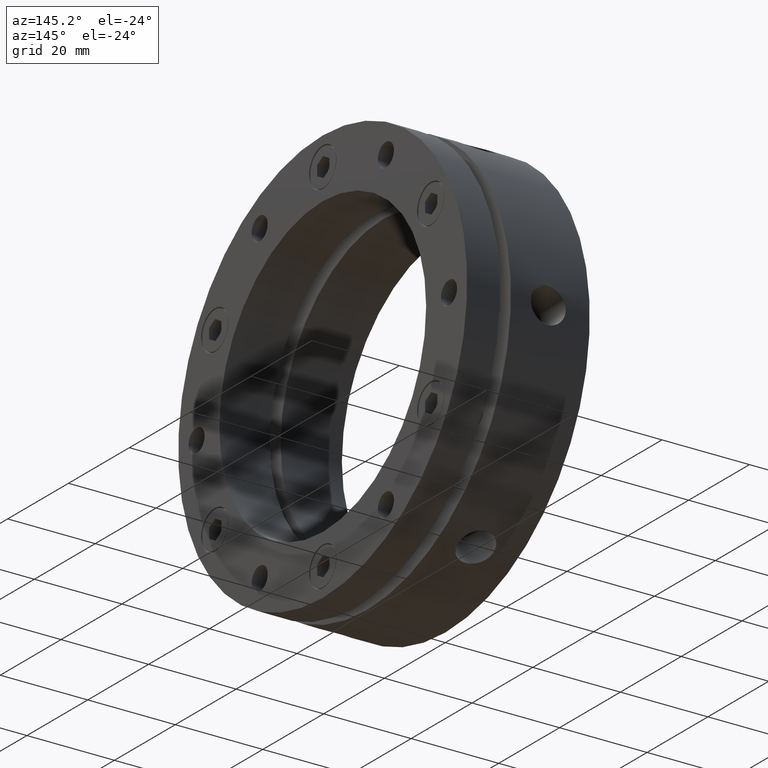
[diagram: clean part render]
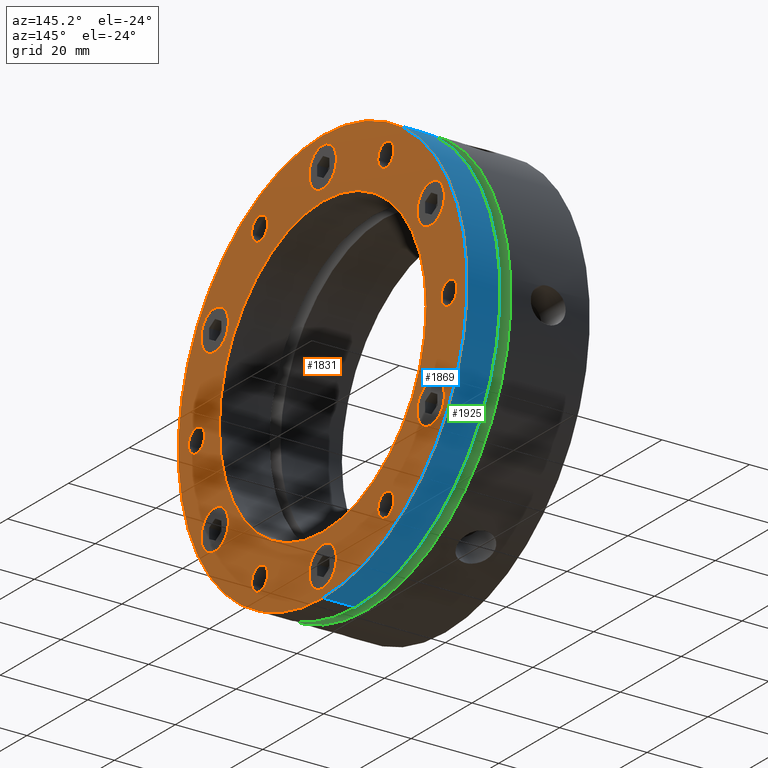
[diagram: same view with three faces highlighted in distinct colors, each labeled with its STEP entity id]
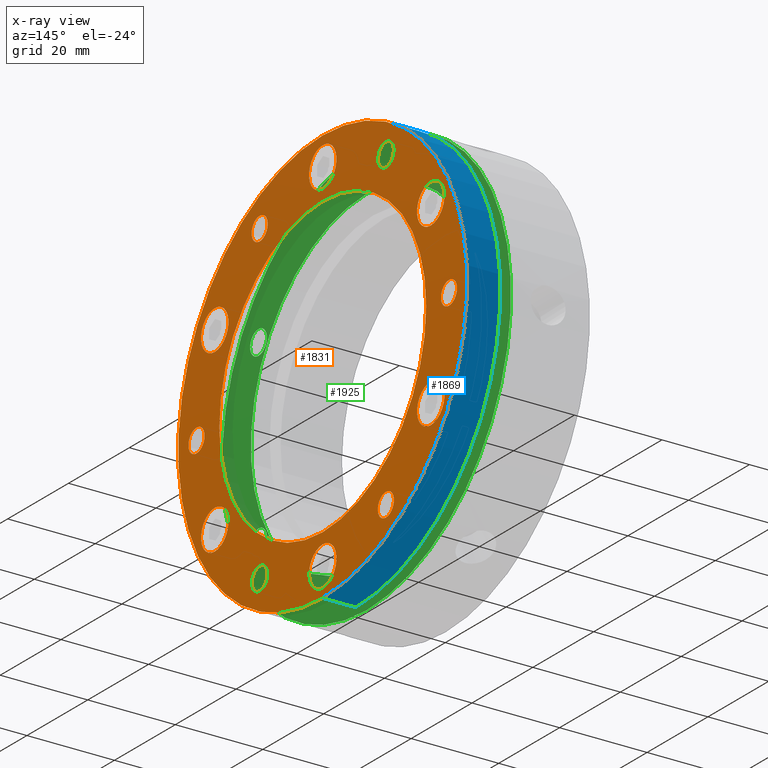
[diagram: x-ray of the same camera — body ghosted, the three highlighted faces saturated]
A machine part, auxiliary view with three faces highlighted in distinct colors.
The next image is the same camera in x-ray (body ghosted, the three faces saturated) — at least one of them is partly hidden behind the body in this view.
Their STEP definitions:

[orange] entity #1831 — the highlighted planar face has unit normal (1, 0, 0).
#133 = EDGE_CURVE ( 'NONE', #1423, #1424, #323, .T. ) ;
#204 = EDGE_LOOP ( 'NONE', ( #1578, #1574 ) ) ;
#205 = EDGE_LOOP ( 'NONE', ( #716, #711 ) ) ;
#207 = EDGE_LOOP ( 'NONE', ( #1571, #1570 ) ) ;
#208 = EDGE_LOOP ( 'NONE', ( #1560, #635 ) ) ;
#209 = EDGE_LOOP ( 'NONE', ( #1562, #1561 ) ) ;
#210 = EDGE_LOOP ( 'NONE', ( #1568, #1566 ) ) ;
#211 = EDGE_LOOP ( 'NONE', ( #760, #699 ) ) ;
#212 = EDGE_LOOP ( 'NONE', ( #712, #698 ) ) ;
#213 = EDGE_LOOP ( 'NONE', ( #663, #730 ) ) ;
#214 = EDGE_LOOP ( 'NONE', ( #727, #722 ) ) ;
#215 = EDGE_LOOP ( 'NONE', ( #726, #729 ) ) ;
#216 = EDGE_LOOP ( 'NONE', ( #723, #720 ) ) ;
#217 = EDGE_LOOP ( 'NONE', ( #725, #721 ) ) ;
#218 = EDGE_LOOP ( 'NONE', ( #724, #728 ) ) ;
#323 = CIRCLE ( 'NONE', #3029, 4.500000000000000900 ) ;
#353 = CIRCLE ( 'NONE', #3039, 4.500000000000000900 ) ;
#359 = CIRCLE ( 'NONE', #3044, 4.499999999999997300 ) ;
#362 = CIRCLE ( 'NONE', #3046, 47.50000000000000000 ) ;
#364 = CIRCLE ( 'NONE', #3049, 4.500000000000003600 ) ;
#365 = CIRCLE ( 'NONE', #3050, 4.500000000000000900 ) ;
#366 = CIRCLE ( 'NONE', #3053, 4.500000000000000900 ) ;
#368 = CIRCLE ( 'NONE', #3052, 4.500000000000000900 ) ;
#369 = CIRCLE ( 'NONE', #3055, 2.649999999999999500 ) ;
#447 = EDGE_CURVE ( 'NONE', #1412, #1411, #353, .T. ) ;
#452 = EDGE_CURVE ( 'NONE', #1404, #1403, #359, .T. ) ;
#454 = EDGE_CURVE ( 'NONE', #1397, #1396, #362, .T. ) ;
#457 = EDGE_CURVE ( 'NONE', #1416, #1415, #364, .T. ) ;
#458 = EDGE_CURVE ( 'NONE', #1424, #1423, #365, .T. ) ;
#460 = EDGE_CURVE ( 'NONE', #1420, #1419, #368, .T. ) ;
#461 = EDGE_CURVE ( 'NONE', #1419, #1420, #366, .T. ) ;
#463 = EDGE_CURVE ( 'NONE', #1428, #1427, #369, .T. ) ;
#469 = AXIS2_PLACEMENT_3D ( 'NONE', #2591, #2592, #2593 ) ;
#475 = AXIS2_PLACEMENT_3D ( 'NONE', #3288, #3289, #3290 ) ;
#508 = AXIS2_PLACEMENT_3D ( 'NONE', #3393, #3389, #3395 ) ;
#635 = ORIENTED_EDGE ( 'NONE', *, *, #457, .T. ) ;
#663 = ORIENTED_EDGE ( 'NONE', *, *, #4709, .T. ) ;
#698 = ORIENTED_EDGE ( 'NONE', *, *, #463, .T. ) ;
#699 = ORIENTED_EDGE ( 'NONE', *, *, #458, .T. ) ;
#711 = ORIENTED_EDGE ( 'NONE', *, *, #460, .T. ) ;
#712 = ORIENTED_EDGE ( 'NONE', *, *, #3121, .T. ) ;
#716 = ORIENTED_EDGE ( 'NONE', *, *, #461, .T. ) ;
#720 = ORIENTED_EDGE ( 'NONE', *, *, #2991, .T. ) ;
#721 = ORIENTED_EDGE ( 'NONE', *, *, #4732, .T. ) ;
#722 = ORIENTED_EDGE ( 'NONE', *, *, #2992, .T. ) ;
#723 = ORIENTED_EDGE ( 'NONE', *, *, #2985, .T. ) ;
#724 = ORIENTED_EDGE ( 'NONE', *, *, #454, .F. ) ;
#725 = ORIENTED_EDGE ( 'NONE', *, *, #2980, .T. ) ;
#726 = ORIENTED_EDGE ( 'NONE', *, *, #2994, .T. ) ;
#727 = ORIENTED_EDGE ( 'NONE', *, *, #4711, .T. ) ;
#728 = ORIENTED_EDGE ( 'NONE', *, *, #900, .F. ) ;
#729 = ORIENTED_EDGE ( 'NONE', *, *, #2993, .T. ) ;
#730 = ORIENTED_EDGE ( 'NONE', *, *, #2989, .T. ) ;
#760 = ORIENTED_EDGE ( 'NONE', *, *, #133, .T. ) ;
#891 = EDGE_CURVE ( 'NONE', #1399, #1400, #2722, .T. ) ;
#900 = EDGE_CURVE ( 'NONE', #1396, #1397, #2737, .T. ) ;
#905 = EDGE_CURVE ( 'NONE', #1415, #1416, #2744, .T. ) ;
#919 = CARTESIAN_POINT ( 'NONE',  ( 27.99999999999998900, 0.0000000000000000000, 41.00000000000002800 ) ) ;
#920 = DIRECTION ( 'NONE',  ( -1.000000000000000000, -0.0000000000000000000, -0.0000000000000000000 ) ) ;
#921 = DIRECTION ( 'NONE',  ( 0.0000000000000000000, 0.0000000000000000000, -1.000000000000000000 ) ) ;
#1096 = CIRCLE ( 'NONE', #4546, 4.499999999999997300 ) ;
#1396 = VERTEX_POINT ( 'NONE', #3221 ) ;
#1397 = VERTEX_POINT ( 'NONE', #3222 ) ;
#1399 = VERTEX_POINT ( 'NONE', #3224 ) ;
#1400 = VERTEX_POINT ( 'NONE', #3225 ) ;
#1403 = VERTEX_POINT ( 'NONE', #3228 ) ;
#1404 = VERTEX_POINT ( 'NONE', #3229 ) ;
#1407 = VERTEX_POINT ( 'NONE', #3232 ) ;
#1408 = VERTEX_POINT ( 'NONE', #3233 ) ;
#1411 = VERTEX_POINT ( 'NONE', #3236 ) ;
#1412 = VERTEX_POINT ( 'NONE', #3237 ) ;
#1415 = VERTEX_POINT ( 'NONE', #3240 ) ;
#1416 = VERTEX_POINT ( 'NONE', #3241 ) ;
#1419 = VERTEX_POINT ( 'NONE', #3244 ) ;
#1420 = VERTEX_POINT ( 'NONE', #3245 ) ;
#1423 = VERTEX_POINT ( 'NONE', #3248 ) ;
#1424 = VERTEX_POINT ( 'NONE', #3249 ) ;
#1427 = VERTEX_POINT ( 'NONE', #3252 ) ;
#1428 = VERTEX_POINT ( 'NONE', #3253 ) ;
#1432 = VERTEX_POINT ( 'NONE', #3258 ) ;
#1433 = VERTEX_POINT ( 'NONE', #3263 ) ;
#1436 = VERTEX_POINT ( 'NONE', #3259 ) ;
#1437 = VERTEX_POINT ( 'NONE', #3265 ) ;
#1440 = VERTEX_POINT ( 'NONE', #3267 ) ;
#1441 = VERTEX_POINT ( 'NONE', #3268 ) ;
#1444 = VERTEX_POINT ( 'NONE', #3271 ) ;
#1445 = VERTEX_POINT ( 'NONE', #3272 ) ;
#1448 = VERTEX_POINT ( 'NONE', #3275 ) ;
#1449 = VERTEX_POINT ( 'NONE', #3276 ) ;
#1495 = EDGE_CURVE ( 'NONE', #1400, #1399, #2757, .T. ) ;
#1560 = ORIENTED_EDGE ( 'NONE', *, *, #905, .T. ) ;
#1561 = ORIENTED_EDGE ( 'NONE', *, *, #447, .T. ) ;
#1562 = ORIENTED_EDGE ( 'NONE', *, *, #4729, .T. ) ;
#1566 = ORIENTED_EDGE ( 'NONE', *, *, #2977, .T. ) ;
#1568 = ORIENTED_EDGE ( 'NONE', *, *, #4737, .T. ) ;
#1570 = ORIENTED_EDGE ( 'NONE', *, *, #452, .T. ) ;
#1571 = ORIENTED_EDGE ( 'NONE', *, *, #4745, .T. ) ;
#1574 = ORIENTED_EDGE ( 'NONE', *, *, #1495, .T. ) ;
#1578 = ORIENTED_EDGE ( 'NONE', *, *, #891, .T. ) ;
#1831 = ADVANCED_FACE ( 'NONE', ( #2835, #2838, #2822, #2837, #2824, #2839, #2840, #2841, #2842, #2843, #2844, #2845, #2846, #2847 ), #3394, .T. ) ;
#2033 = CARTESIAN_POINT ( 'NONE',  ( 27.99999999999998900, 35.50704155516203300, 20.49999999999998900 ) ) ;
#2034 = DIRECTION ( 'NONE',  ( -1.000000000000000000, -0.0000000000000000000, -0.0000000000000000000 ) ) ;
#2035 = DIRECTION ( 'NONE',  ( 0.0000000000000000000, 0.0000000000000000000, -1.000000000000000000 ) ) ;
#2081 = CARTESIAN_POINT ( 'NONE',  ( 27.99999999999998900, -35.50704155516201900, -20.50000000000000700 ) ) ;
#2082 = DIRECTION ( 'NONE',  ( -1.000000000000000000, -0.0000000000000000000, -0.0000000000000000000 ) ) ;
#2083 = DIRECTION ( 'NONE',  ( 0.0000000000000000000, 0.0000000000000000000, -1.000000000000000000 ) ) ;
#2096 = CARTESIAN_POINT ( 'NONE',  ( 27.99999999999998900, 0.0000000000000000000, 41.00000000000002800 ) ) ;
#2097 = DIRECTION ( 'NONE',  ( -1.000000000000000000, -0.0000000000000000000, -0.0000000000000000000 ) ) ;
#2098 = DIRECTION ( 'NONE',  ( 0.0000000000000000000, 0.0000000000000000000, -1.000000000000000000 ) ) ;
#2102 = CARTESIAN_POINT ( 'NONE',  ( 27.99999999999998900, 0.0000000000000000000, 0.0000000000000000000 ) ) ;
#2103 = DIRECTION ( 'NONE',  ( -1.000000000000000000, -0.0000000000000000000, -0.0000000000000000000 ) ) ;
#2104 = DIRECTION ( 'NONE',  ( 0.0000000000000000000, 0.0000000000000000000, -1.000000000000000000 ) ) ;
#2111 = CARTESIAN_POINT ( 'NONE',  ( 27.99999999999998900, -6.661337999999999900E-015, -41.00000000000002800 ) ) ;
#2112 = DIRECTION ( 'NONE',  ( -1.000000000000000000, -0.0000000000000000000, -0.0000000000000000000 ) ) ;
#2113 = DIRECTION ( 'NONE',  ( 0.0000000000000000000, 0.0000000000000000000, -1.000000000000000000 ) ) ;
#2114 = CARTESIAN_POINT ( 'NONE',  ( 27.99999999999998900, 35.50704155516203300, 20.49999999999998900 ) ) ;
#2115 = DIRECTION ( 'NONE',  ( -1.000000000000000000, -0.0000000000000000000, -0.0000000000000000000 ) ) ;
#2116 = DIRECTION ( 'NONE',  ( 0.0000000000000000000, 0.0000000000000000000, -1.000000000000000000 ) ) ;
#2121 = CARTESIAN_POINT ( 'NONE',  ( 27.99999999999998900, 35.50704155516199700, -20.50000000000003600 ) ) ;
#2122 = DIRECTION ( 'NONE',  ( -1.000000000000000000, -0.0000000000000000000, -0.0000000000000000000 ) ) ;
#2123 = DIRECTION ( 'NONE',  ( 0.0000000000000000000, 0.0000000000000000000, -1.000000000000000000 ) ) ;
#2124 = CARTESIAN_POINT ( 'NONE',  ( 27.99999999999998900, 35.50704155516199700, -20.50000000000003600 ) ) ;
#2125 = DIRECTION ( 'NONE',  ( -1.000000000000000000, -0.0000000000000000000, -0.0000000000000000000 ) ) ;
#2126 = DIRECTION ( 'NONE',  ( 0.0000000000000000000, 0.0000000000000000000, -1.000000000000000000 ) ) ;
#2131 = CARTESIAN_POINT ( 'NONE',  ( 27.99999999999998900, -20.75000000000003200, 35.94005425705420000 ) ) ;
#2132 = DIRECTION ( 'NONE',  ( -1.000000000000000000, -0.0000000000000000000, -0.0000000000000000000 ) ) ;
#2133 = DIRECTION ( 'NONE',  ( 0.0000000000000000000, 0.0000000000000000000, -1.000000000000000000 ) ) ;
#2552 = CARTESIAN_POINT ( 'NONE',  ( 27.99999999999999300, 0.0000000000000000000, 0.0000000000000000000 ) ) ;
#2553 = DIRECTION ( 'NONE',  ( -1.000000000000000000, -0.0000000000000000000, -0.0000000000000000000 ) ) ;
#2554 = DIRECTION ( 'NONE',  ( 0.0000000000000000000, 0.0000000000000000000, -1.000000000000000000 ) ) ;
#2576 = CARTESIAN_POINT ( 'NONE',  ( 27.99999999999998900, 0.0000000000000000000, 0.0000000000000000000 ) ) ;
#2577 = DIRECTION ( 'NONE',  ( -1.000000000000000000, -0.0000000000000000000, -0.0000000000000000000 ) ) ;
#2578 = DIRECTION ( 'NONE',  ( 0.0000000000000000000, 0.0000000000000000000, -1.000000000000000000 ) ) ;
#2591 = CARTESIAN_POINT ( 'NONE',  ( 27.99999999999998900, -6.661337999999999900E-015, -41.00000000000002800 ) ) ;
#2592 = DIRECTION ( 'NONE',  ( -1.000000000000000000, -0.0000000000000000000, -0.0000000000000000000 ) ) ;
#2593 = DIRECTION ( 'NONE',  ( 0.0000000000000000000, 0.0000000000000000000, -1.000000000000000000 ) ) ;
#2722 = CIRCLE ( 'NONE', #3086, 34.00000000000000000 ) ;
#2737 = CIRCLE ( 'NONE', #3092, 47.50000000000000000 ) ;
#2744 = CIRCLE ( 'NONE', #469, 4.500000000000003600 ) ;
#2757 = CIRCLE ( 'NONE', #475, 34.00000000000000000 ) ;
#2822 = FACE_BOUND ( 'NONE', #210, .T. ) ;
#2824 = FACE_BOUND ( 'NONE', #208, .T. ) ;
#2835 = FACE_BOUND ( 'NONE', #204, .T. ) ;
#2837 = FACE_BOUND ( 'NONE', #209, .T. ) ;
#2838 = FACE_BOUND ( 'NONE', #207, .T. ) ;
#2839 = FACE_BOUND ( 'NONE', #205, .T. ) ;
#2840 = FACE_BOUND ( 'NONE', #211, .T. ) ;
#2841 = FACE_BOUND ( 'NONE', #212, .T. ) ;
#2842 = FACE_BOUND ( 'NONE', #213, .T. ) ;
#2843 = FACE_BOUND ( 'NONE', #214, .T. ) ;
#2844 = FACE_BOUND ( 'NONE', #215, .T. ) ;
#2845 = FACE_BOUND ( 'NONE', #216, .T. ) ;
#2846 = FACE_BOUND ( 'NONE', #217, .T. ) ;
#2847 = FACE_OUTER_BOUND ( 'NONE', #218, .T. ) ;
#2977 = EDGE_CURVE ( 'NONE', #1408, #1407, #4249, .T. ) ;
#2980 = EDGE_CURVE ( 'NONE', #1448, #1449, #4252, .T. ) ;
#2985 = EDGE_CURVE ( 'NONE', #1444, #1445, #4261, .T. ) ;
#2989 = EDGE_CURVE ( 'NONE', #1433, #1432, #4263, .T. ) ;
#2991 = EDGE_CURVE ( 'NONE', #1445, #1444, #4268, .T. ) ;
#2992 = EDGE_CURVE ( 'NONE', #1437, #1436, #4270, .T. ) ;
#2993 = EDGE_CURVE ( 'NONE', #1441, #1440, #4269, .T. ) ;
#2994 = EDGE_CURVE ( 'NONE', #1440, #1441, #4271, .T. ) ;
#3029 = AXIS2_PLACEMENT_3D ( 'NONE', #2033, #2034, #2035 ) ;
#3039 = AXIS2_PLACEMENT_3D ( 'NONE', #2081, #2082, #2083 ) ;
#3044 = AXIS2_PLACEMENT_3D ( 'NONE', #2096, #2097, #2098 ) ;
#3046 = AXIS2_PLACEMENT_3D ( 'NONE', #2102, #2103, #2104 ) ;
#3049 = AXIS2_PLACEMENT_3D ( 'NONE', #2111, #2112, #2113 ) ;
#3050 = AXIS2_PLACEMENT_3D ( 'NONE', #2114, #2115, #2116 ) ;
#3052 = AXIS2_PLACEMENT_3D ( 'NONE', #2121, #2122, #2123 ) ;
#3053 = AXIS2_PLACEMENT_3D ( 'NONE', #2124, #2125, #2126 ) ;
#3055 = AXIS2_PLACEMENT_3D ( 'NONE', #2131, #2132, #2133 ) ;
#3086 = AXIS2_PLACEMENT_3D ( 'NONE', #2552, #2553, #2554 ) ;
#3092 = AXIS2_PLACEMENT_3D ( 'NONE', #2576, #2577, #2578 ) ;
#3121 = EDGE_CURVE ( 'NONE', #1427, #1428, #4324, .T. ) ;
#3221 = CARTESIAN_POINT ( 'NONE',  ( 27.99999999999998900, 5.817072295949928200E-015, 47.50000000000000000 ) ) ;
#3222 = CARTESIAN_POINT ( 'NONE',  ( 27.99999999999998900, 0.0000000000000000000, -47.50000000000000000 ) ) ;
#3224 = CARTESIAN_POINT ( 'NONE',  ( 27.99999999999999300, 0.0000000000000000000, -34.00000000000000000 ) ) ;
#3225 = CARTESIAN_POINT ( 'NONE',  ( 27.99999999999999300, 4.163799117101000600E-015, 34.00000000000000000 ) ) ;
#3228 = CARTESIAN_POINT ( 'NONE',  ( 27.99999999999998900, 0.0000000000000000000, 36.50000000000003600 ) ) ;
#3229 = CARTESIAN_POINT ( 'NONE',  ( 27.99999999999998900, 5.510910596163093500E-016, 45.50000000000002800 ) ) ;
#3232 = CARTESIAN_POINT ( 'NONE',  ( 27.99999999999998900, -35.50704155516201200, 16.00000000000002100 ) ) ;
#3233 = CARTESIAN_POINT ( 'NONE',  ( 27.99999999999998900, -35.50704155516201200, 25.00000000000002100 ) ) ;
#3236 = CARTESIAN_POINT ( 'NONE',  ( 27.99999999999998900, -35.50704155516201900, -25.00000000000000700 ) ) ;
#3237 = CARTESIAN_POINT ( 'NONE',  ( 27.99999999999998900, -35.50704155516201900, -16.00000000000000700 ) ) ;
#3240 = CARTESIAN_POINT ( 'NONE',  ( 27.99999999999998900, -6.661337999999999900E-015, -45.50000000000003600 ) ) ;
#3241 = CARTESIAN_POINT ( 'NONE',  ( 27.99999999999998900, -6.110246940383690900E-015, -36.50000000000002800 ) ) ;
#3244 = CARTESIAN_POINT ( 'NONE',  ( 27.99999999999998900, 35.50704155516199700, -25.00000000000003600 ) ) ;
#3245 = CARTESIAN_POINT ( 'NONE',  ( 27.99999999999998900, 35.50704155516199700, -16.00000000000003600 ) ) ;
#3248 = CARTESIAN_POINT ( 'NONE',  ( 27.99999999999998900, 35.50704155516203300, 15.99999999999998900 ) ) ;
#3249 = CARTESIAN_POINT ( 'NONE',  ( 27.99999999999998900, 35.50704155516203300, 24.99999999999998900 ) ) ;
#3252 = CARTESIAN_POINT ( 'NONE',  ( 27.99999999999998900, -20.75000000000003200, 33.29005425705420200 ) ) ;
#3253 = CARTESIAN_POINT ( 'NONE',  ( 27.99999999999998900, -20.75000000000003200, 38.59005425705420600 ) ) ;
#3258 = CARTESIAN_POINT ( 'NONE',  ( 27.99999999999998900, -41.50000000000001400, -2.650000000000024300 ) ) ;
#3259 = CARTESIAN_POINT ( 'NONE',  ( 27.99999999999998900, -20.74999999999998900, -38.59005425705423400 ) ) ;
#3263 = CARTESIAN_POINT ( 'NONE',  ( 27.99999999999998900, -41.50000000000001400, 2.649999999999975900 ) ) ;
#3265 = CARTESIAN_POINT ( 'NONE',  ( 27.99999999999998900, -20.74999999999998900, -33.29005425705423000 ) ) ;
#3267 = CARTESIAN_POINT ( 'NONE',  ( 27.99999999999998900, 20.75000000000002800, -38.59005425705420600 ) ) ;
#3268 = CARTESIAN_POINT ( 'NONE',  ( 27.99999999999998900, 20.75000000000002800, -33.29005425705420200 ) ) ;
#3271 = CARTESIAN_POINT ( 'NONE',  ( 27.99999999999998900, 41.50000000000001400, -2.649999999999991500 ) ) ;
#3272 = CARTESIAN_POINT ( 'NONE',  ( 27.99999999999998900, 41.50000000000001400, 2.650000000000008800 ) ) ;
#3275 = CARTESIAN_POINT ( 'NONE',  ( 27.99999999999998900, 20.75000000000001100, 33.29005425705421600 ) ) ;
#3276 = CARTESIAN_POINT ( 'NONE',  ( 27.99999999999998900, 20.75000000000001100, 38.59005425705422000 ) ) ;
#3288 = CARTESIAN_POINT ( 'NONE',  ( 27.99999999999999300, 0.0000000000000000000, 0.0000000000000000000 ) ) ;
#3289 = DIRECTION ( 'NONE',  ( -1.000000000000000000, -0.0000000000000000000, -0.0000000000000000000 ) ) ;
#3290 = DIRECTION ( 'NONE',  ( 0.0000000000000000000, 0.0000000000000000000, -1.000000000000000000 ) ) ;
#3389 = DIRECTION ( 'NONE',  ( 1.000000000000000000, -0.0000000000000000000, 0.0000000000000000000 ) ) ;
#3393 = CARTESIAN_POINT ( 'NONE',  ( 27.99999999999998900, 40.75000000000000000, 0.0000000000000000000 ) ) ;
#3394 = PLANE ( 'NONE',  #508 ) ;
#3395 = DIRECTION ( 'NONE',  ( 0.0000000000000000000, 0.0000000000000000000, -1.000000000000000000 ) ) ;
#3732 = CARTESIAN_POINT ( 'NONE',  ( 27.99999999999998900, -35.50704155516201200, 20.50000000000002100 ) ) ;
#3733 = DIRECTION ( 'NONE',  ( -1.000000000000000000, -0.0000000000000000000, -0.0000000000000000000 ) ) ;
#3734 = DIRECTION ( 'NONE',  ( 0.0000000000000000000, 0.0000000000000000000, -1.000000000000000000 ) ) ;
#3737 = CARTESIAN_POINT ( 'NONE',  ( 27.99999999999998900, 20.75000000000001100, 35.94005425705421400 ) ) ;
#3738 = DIRECTION ( 'NONE',  ( -1.000000000000000000, -0.0000000000000000000, -0.0000000000000000000 ) ) ;
#3739 = DIRECTION ( 'NONE',  ( 0.0000000000000000000, 0.0000000000000000000, -1.000000000000000000 ) ) ;
#3753 = CARTESIAN_POINT ( 'NONE',  ( 27.99999999999998900, 41.50000000000001400, 8.881783999999999800E-015 ) ) ;
#3754 = DIRECTION ( 'NONE',  ( -1.000000000000000000, -0.0000000000000000000, -0.0000000000000000000 ) ) ;
#3755 = DIRECTION ( 'NONE',  ( 0.0000000000000000000, 0.0000000000000000000, -1.000000000000000000 ) ) ;
#3760 = CARTESIAN_POINT ( 'NONE',  ( 27.99999999999998900, -41.50000000000001400, -2.442491000000000100E-014 ) ) ;
#3761 = DIRECTION ( 'NONE',  ( -1.000000000000000000, -0.0000000000000000000, -0.0000000000000000000 ) ) ;
#3762 = DIRECTION ( 'NONE',  ( 0.0000000000000000000, 0.0000000000000000000, -1.000000000000000000 ) ) ;
#3767 = CARTESIAN_POINT ( 'NONE',  ( 27.99999999999998900, 41.50000000000001400, 8.881783999999999800E-015 ) ) ;
#3768 = DIRECTION ( 'NONE',  ( -1.000000000000000000, -0.0000000000000000000, -0.0000000000000000000 ) ) ;
#3769 = DIRECTION ( 'NONE',  ( 0.0000000000000000000, 0.0000000000000000000, -1.000000000000000000 ) ) ;
#3770 = CARTESIAN_POINT ( 'NONE',  ( 27.99999999999998900, -20.74999999999998900, -35.94005425705422900 ) ) ;
#3771 = DIRECTION ( 'NONE',  ( -1.000000000000000000, -0.0000000000000000000, -0.0000000000000000000 ) ) ;
#3772 = DIRECTION ( 'NONE',  ( 0.0000000000000000000, 0.0000000000000000000, -1.000000000000000000 ) ) ;
#3774 = CARTESIAN_POINT ( 'NONE',  ( 27.99999999999998900, 20.75000000000002800, -35.94005425705420000 ) ) ;
#3775 = DIRECTION ( 'NONE',  ( -1.000000000000000000, -0.0000000000000000000, -0.0000000000000000000 ) ) ;
#3776 = DIRECTION ( 'NONE',  ( 0.0000000000000000000, 0.0000000000000000000, -1.000000000000000000 ) ) ;
#3777 = CARTESIAN_POINT ( 'NONE',  ( 27.99999999999998900, 20.75000000000002800, -35.94005425705420000 ) ) ;
#3778 = DIRECTION ( 'NONE',  ( -1.000000000000000000, -0.0000000000000000000, -0.0000000000000000000 ) ) ;
#3779 = DIRECTION ( 'NONE',  ( 0.0000000000000000000, 0.0000000000000000000, -1.000000000000000000 ) ) ;
#3903 = CARTESIAN_POINT ( 'NONE',  ( 27.99999999999998900, -20.75000000000003200, 35.94005425705420000 ) ) ;
#3904 = DIRECTION ( 'NONE',  ( -1.000000000000000000, -0.0000000000000000000, -0.0000000000000000000 ) ) ;
#3905 = DIRECTION ( 'NONE',  ( 0.0000000000000000000, 0.0000000000000000000, -1.000000000000000000 ) ) ;
#4056 = CARTESIAN_POINT ( 'NONE',  ( 27.99999999999998900, -41.50000000000001400, -2.442491000000000100E-014 ) ) ;
#4057 = DIRECTION ( 'NONE',  ( -1.000000000000000000, -0.0000000000000000000, -0.0000000000000000000 ) ) ;
#4058 = DIRECTION ( 'NONE',  ( 0.0000000000000000000, 0.0000000000000000000, -1.000000000000000000 ) ) ;
#4061 = CARTESIAN_POINT ( 'NONE',  ( 27.99999999999998900, -20.74999999999998900, -35.94005425705422900 ) ) ;
#4062 = DIRECTION ( 'NONE',  ( -1.000000000000000000, -0.0000000000000000000, -0.0000000000000000000 ) ) ;
#4063 = DIRECTION ( 'NONE',  ( 0.0000000000000000000, 0.0000000000000000000, -1.000000000000000000 ) ) ;
#4106 = CARTESIAN_POINT ( 'NONE',  ( 27.99999999999998900, -35.50704155516201900, -20.50000000000000700 ) ) ;
#4107 = DIRECTION ( 'NONE',  ( -1.000000000000000000, -0.0000000000000000000, -0.0000000000000000000 ) ) ;
#4108 = DIRECTION ( 'NONE',  ( 0.0000000000000000000, 0.0000000000000000000, -1.000000000000000000 ) ) ;
#4114 = CARTESIAN_POINT ( 'NONE',  ( 27.99999999999998900, 20.75000000000001100, 35.94005425705421400 ) ) ;
#4115 = DIRECTION ( 'NONE',  ( -1.000000000000000000, -0.0000000000000000000, -0.0000000000000000000 ) ) ;
#4116 = DIRECTION ( 'NONE',  ( 0.0000000000000000000, 0.0000000000000000000, -1.000000000000000000 ) ) ;
#4127 = CARTESIAN_POINT ( 'NONE',  ( 27.99999999999998900, -35.50704155516201200, 20.50000000000002100 ) ) ;
#4128 = DIRECTION ( 'NONE',  ( -1.000000000000000000, -0.0000000000000000000, -0.0000000000000000000 ) ) ;
#4129 = DIRECTION ( 'NONE',  ( 0.0000000000000000000, 0.0000000000000000000, -1.000000000000000000 ) ) ;
#4249 = CIRCLE ( 'NONE', #4465, 4.500000000000000900 ) ;
#4252 = CIRCLE ( 'NONE', #4466, 2.649999999999999500 ) ;
#4261 = CIRCLE ( 'NONE', #4470, 2.649999999999999900 ) ;
#4263 = CIRCLE ( 'NONE', #4472, 2.649999999999999900 ) ;
#4268 = CIRCLE ( 'NONE', #4474, 2.649999999999999900 ) ;
#4269 = CIRCLE ( 'NONE', #4476, 2.649999999999999500 ) ;
#4270 = CIRCLE ( 'NONE', #4475, 2.649999999999999500 ) ;
#4271 = CIRCLE ( 'NONE', #4477, 2.649999999999999500 ) ;
#4324 = CIRCLE ( 'NONE', #4513, 2.649999999999999500 ) ;
#4383 = CIRCLE ( 'NONE', #4526, 2.649999999999999900 ) ;
#4387 = CIRCLE ( 'NONE', #4527, 2.649999999999999500 ) ;
#4413 = CIRCLE ( 'NONE', #4538, 2.649999999999999500 ) ;
#4415 = CIRCLE ( 'NONE', #4536, 4.500000000000000900 ) ;
#4426 = CIRCLE ( 'NONE', #4541, 4.500000000000000900 ) ;
#4465 = AXIS2_PLACEMENT_3D ( 'NONE', #3732, #3733, #3734 ) ;
#4466 = AXIS2_PLACEMENT_3D ( 'NONE', #3737, #3738, #3739 ) ;
#4470 = AXIS2_PLACEMENT_3D ( 'NONE', #3753, #3754, #3755 ) ;
#4472 = AXIS2_PLACEMENT_3D ( 'NONE', #3760, #3761, #3762 ) ;
#4474 = AXIS2_PLACEMENT_3D ( 'NONE', #3767, #3768, #3769 ) ;
#4475 = AXIS2_PLACEMENT_3D ( 'NONE', #3770, #3771, #3772 ) ;
#4476 = AXIS2_PLACEMENT_3D ( 'NONE', #3774, #3775, #3776 ) ;
#4477 = AXIS2_PLACEMENT_3D ( 'NONE', #3777, #3778, #3779 ) ;
#4513 = AXIS2_PLACEMENT_3D ( 'NONE', #3903, #3904, #3905 ) ;
#4526 = AXIS2_PLACEMENT_3D ( 'NONE', #4056, #4057, #4058 ) ;
#4527 = AXIS2_PLACEMENT_3D ( 'NONE', #4061, #4062, #4063 ) ;
#4536 = AXIS2_PLACEMENT_3D ( 'NONE', #4106, #4107, #4108 ) ;
#4538 = AXIS2_PLACEMENT_3D ( 'NONE', #4114, #4115, #4116 ) ;
#4541 = AXIS2_PLACEMENT_3D ( 'NONE', #4127, #4128, #4129 ) ;
#4546 = AXIS2_PLACEMENT_3D ( 'NONE', #919, #920, #921 ) ;
#4709 = EDGE_CURVE ( 'NONE', #1432, #1433, #4383, .T. ) ;
#4711 = EDGE_CURVE ( 'NONE', #1436, #1437, #4387, .T. ) ;
#4729 = EDGE_CURVE ( 'NONE', #1411, #1412, #4415, .T. ) ;
#4732 = EDGE_CURVE ( 'NONE', #1449, #1448, #4413, .T. ) ;
#4737 = EDGE_CURVE ( 'NONE', #1407, #1408, #4426, .T. ) ;
#4745 = EDGE_CURVE ( 'NONE', #1403, #1404, #1096, .T. ) ;

[blue] entity #1869 — the highlighted cylindrical surface (partial cylindrical patch) has radius 47.5 mm, axis along (1, 0, 0).
#170 = EDGE_LOOP ( 'NONE', ( #1640, #1652, #1657, #1584 ) ) ;
#899 = EDGE_CURVE ( 'NONE', #1390, #1397, #2736, .T. ) ;
#900 = EDGE_CURVE ( 'NONE', #1396, #1397, #2737, .T. ) ;
#902 = EDGE_CURVE ( 'NONE', #1393, #1396, #2740, .T. ) ;
#903 = EDGE_CURVE ( 'NONE', #1390, #1393, #2741, .T. ) ;
#1390 = VERTEX_POINT ( 'NONE', #3215 ) ;
#1393 = VERTEX_POINT ( 'NONE', #3218 ) ;
#1396 = VERTEX_POINT ( 'NONE', #3221 ) ;
#1397 = VERTEX_POINT ( 'NONE', #3222 ) ;
#1521 = AXIS2_PLACEMENT_3D ( 'NONE', #3508, #3506, #3504 ) ;
#1584 = ORIENTED_EDGE ( 'NONE', *, *, #899, .F. ) ;
#1640 = ORIENTED_EDGE ( 'NONE', *, *, #903, .T. ) ;
#1652 = ORIENTED_EDGE ( 'NONE', *, *, #902, .T. ) ;
#1657 = ORIENTED_EDGE ( 'NONE', *, *, #900, .T. ) ;
#1869 = ADVANCED_FACE ( 'NONE', ( #2918 ), #2927, .T. ) ;
#2566 = CARTESIAN_POINT ( 'NONE',  ( 13.99999999999998800, 0.0000000000000000000, -47.50000000000000000 ) ) ;
#2567 = DIRECTION ( 'NONE',  ( 1.000000000000000000, 0.0000000000000000000, 0.0000000000000000000 ) ) ;
#2574 = DIRECTION ( 'NONE',  ( 1.000000000000000000, 0.0000000000000000000, 0.0000000000000000000 ) ) ;
#2575 = CARTESIAN_POINT ( 'NONE',  ( 13.99999999999998800, 5.817072295949928200E-015, 47.50000000000000000 ) ) ;
#2576 = CARTESIAN_POINT ( 'NONE',  ( 27.99999999999998900, 0.0000000000000000000, 0.0000000000000000000 ) ) ;
#2577 = DIRECTION ( 'NONE',  ( -1.000000000000000000, -0.0000000000000000000, -0.0000000000000000000 ) ) ;
#2578 = DIRECTION ( 'NONE',  ( 0.0000000000000000000, 0.0000000000000000000, -1.000000000000000000 ) ) ;
#2582 = CARTESIAN_POINT ( 'NONE',  ( 20.49999999999999300, 0.0000000000000000000, 0.0000000000000000000 ) ) ;
#2583 = DIRECTION ( 'NONE',  ( 1.000000000000000000, 0.0000000000000000000, 0.0000000000000000000 ) ) ;
#2584 = DIRECTION ( 'NONE',  ( 0.0000000000000000000, 0.0000000000000000000, -1.000000000000000000 ) ) ;
#2736 = LINE ( 'NONE', #2566, #2738 ) ;
#2737 = CIRCLE ( 'NONE', #3092, 47.50000000000000000 ) ;
#2738 = VECTOR ( 'NONE', #2567, 1000.000000000000000 ) ;
#2740 = LINE ( 'NONE', #2575, #2742 ) ;
#2741 = CIRCLE ( 'NONE', #3094, 47.50000000000000000 ) ;
#2742 = VECTOR ( 'NONE', #2574, 1000.000000000000000 ) ;
#2918 = FACE_OUTER_BOUND ( 'NONE', #170, .T. ) ;
#2927 = CYLINDRICAL_SURFACE ( 'NONE', #1521, 47.50000000000000000 ) ;
#3092 = AXIS2_PLACEMENT_3D ( 'NONE', #2576, #2577, #2578 ) ;
#3094 = AXIS2_PLACEMENT_3D ( 'NONE', #2582, #2583, #2584 ) ;
#3215 = CARTESIAN_POINT ( 'NONE',  ( 20.49999999999999300, 0.0000000000000000000, -47.50000000000000000 ) ) ;
#3218 = CARTESIAN_POINT ( 'NONE',  ( 20.49999999999999300, 5.817072295949928200E-015, 47.50000000000000000 ) ) ;
#3221 = CARTESIAN_POINT ( 'NONE',  ( 27.99999999999998900, 5.817072295949928200E-015, 47.50000000000000000 ) ) ;
#3222 = CARTESIAN_POINT ( 'NONE',  ( 27.99999999999998900, 0.0000000000000000000, -47.50000000000000000 ) ) ;
#3504 = DIRECTION ( 'NONE',  ( 0.0000000000000000000, 0.0000000000000000000, -1.000000000000000000 ) ) ;
#3506 = DIRECTION ( 'NONE',  ( 1.000000000000000000, 0.0000000000000000000, 0.0000000000000000000 ) ) ;
#3508 = CARTESIAN_POINT ( 'NONE',  ( 13.99999999999998800, 0.0000000000000000000, 0.0000000000000000000 ) ) ;

[green] entity #1925 — the highlighted planar face has unit normal (-1, 0, 0).
#21 = VERTEX_POINT ( 'NONE', #1954 ) ;
#22 = VERTEX_POINT ( 'NONE', #1955 ) ;
#137 = EDGE_CURVE ( 'NONE', #1352, #1353, #329, .T. ) ;
#139 = EDGE_CURVE ( 'NONE', #4753, #152, #333, .T. ) ;
#143 = EDGE_CURVE ( 'NONE', #1348, #1349, #339, .T. ) ;
#152 = VERTEX_POINT ( 'NONE', #2073 ) ;
#266 = EDGE_LOOP ( 'NONE', ( #4679, #4678 ) ) ;
#267 = EDGE_LOOP ( 'NONE', ( #4685, #4684 ) ) ;
#279 = EDGE_LOOP ( 'NONE', ( #4683, #4682 ) ) ;
#280 = EDGE_LOOP ( 'NONE', ( #4681, #4680 ) ) ;
#287 = EDGE_LOOP ( 'NONE', ( #4677, #4676 ) ) ;
#288 = EDGE_LOOP ( 'NONE', ( #4675, #4674 ) ) ;
#289 = EDGE_LOOP ( 'NONE', ( #4673, #4672 ) ) ;
#290 = EDGE_LOOP ( 'NONE', ( #4671, #4669 ) ) ;
#329 = CIRCLE ( 'NONE', #3030, 2.749999999999999100 ) ;
#333 = CIRCLE ( 'NONE', #3031, 2.750000000000002700 ) ;
#339 = CIRCLE ( 'NONE', #3033, 2.749999999999999100 ) ;
#472 = AXIS2_PLACEMENT_3D ( 'NONE', #3175, #3176, #3177 ) ;
#582 = EDGE_CURVE ( 'NONE', #22, #21, #2705, .T. ) ;
#904 = EDGE_CURVE ( 'NONE', #21, #22, #2743, .T. ) ;
#913 = EDGE_CURVE ( 'NONE', #1364, #1365, #2751, .T. ) ;
#933 = CARTESIAN_POINT ( 'NONE',  ( 17.99999999999999300, 3.367778697655217600E-016, 43.75000000000002800 ) ) ;
#943 = CARTESIAN_POINT ( 'NONE',  ( 17.99999999999999300, 0.0000000000000000000, 38.00000000000000700 ) ) ;
#944 = CARTESIAN_POINT ( 'NONE',  ( 17.99999999999999300, 4.653657836759942700E-015, -38.00000000000000700 ) ) ;
#1348 = VERTEX_POINT ( 'NONE', #3169 ) ;
#1349 = VERTEX_POINT ( 'NONE', #3168 ) ;
#1352 = VERTEX_POINT ( 'NONE', #3179 ) ;
#1353 = VERTEX_POINT ( 'NONE', #3173 ) ;
#1356 = VERTEX_POINT ( 'NONE', #3181 ) ;
#1357 = VERTEX_POINT ( 'NONE', #3182 ) ;
#1360 = VERTEX_POINT ( 'NONE', #3185 ) ;
#1361 = VERTEX_POINT ( 'NONE', #3186 ) ;
#1364 = VERTEX_POINT ( 'NONE', #3189 ) ;
#1365 = VERTEX_POINT ( 'NONE', #3190 ) ;
#1925 = ADVANCED_FACE ( 'NONE', ( #4206, #4214, #4210, #4208, #4212, #4215, #4216, #4217 ), #3687, .F. ) ;
#1954 = CARTESIAN_POINT ( 'NONE',  ( 17.99999999999999300, 0.0000000000000000000, -47.50000000000000000 ) ) ;
#1955 = CARTESIAN_POINT ( 'NONE',  ( 17.99999999999999300, 5.817072295949928200E-015, 47.50000000000000000 ) ) ;
#2041 = CARTESIAN_POINT ( 'NONE',  ( 17.99999999999999300, -35.50704155516201900, -20.50000000000000700 ) ) ;
#2042 = DIRECTION ( 'NONE',  ( 1.000000000000000000, 0.0000000000000000000, 0.0000000000000000000 ) ) ;
#2043 = DIRECTION ( 'NONE',  ( 0.0000000000000000000, 0.0000000000000000000, -1.000000000000000000 ) ) ;
#2045 = CARTESIAN_POINT ( 'NONE',  ( 17.99999999999999300, 0.0000000000000000000, 41.00000000000002800 ) ) ;
#2046 = DIRECTION ( 'NONE',  ( 1.000000000000000000, 0.0000000000000000000, 0.0000000000000000000 ) ) ;
#2047 = DIRECTION ( 'NONE',  ( 0.0000000000000000000, 0.0000000000000000000, -1.000000000000000000 ) ) ;
#2055 = CARTESIAN_POINT ( 'NONE',  ( 17.99999999999999300, -35.50704155516201200, 20.50000000000002100 ) ) ;
#2056 = DIRECTION ( 'NONE',  ( 1.000000000000000000, 0.0000000000000000000, 0.0000000000000000000 ) ) ;
#2057 = DIRECTION ( 'NONE',  ( 0.0000000000000000000, 0.0000000000000000000, -1.000000000000000000 ) ) ;
#2073 = CARTESIAN_POINT ( 'NONE',  ( 17.99999999999999300, 0.0000000000000000000, 38.25000000000002800 ) ) ;
#2383 = CARTESIAN_POINT ( 'NONE',  ( 17.99999999999999300, 0.0000000000000000000, 0.0000000000000000000 ) ) ;
#2384 = DIRECTION ( 'NONE',  ( -1.000000000000000000, -0.0000000000000000000, -0.0000000000000000000 ) ) ;
#2385 = DIRECTION ( 'NONE',  ( 0.0000000000000000000, 0.0000000000000000000, -1.000000000000000000 ) ) ;
#2586 = CARTESIAN_POINT ( 'NONE',  ( 17.99999999999999300, 0.0000000000000000000, 0.0000000000000000000 ) ) ;
#2587 = DIRECTION ( 'NONE',  ( -1.000000000000000000, -0.0000000000000000000, -0.0000000000000000000 ) ) ;
#2588 = DIRECTION ( 'NONE',  ( 0.0000000000000000000, 0.0000000000000000000, -1.000000000000000000 ) ) ;
#2705 = CIRCLE ( 'NONE', #3078, 47.50000000000000000 ) ;
#2743 = CIRCLE ( 'NONE', #3095, 47.50000000000000000 ) ;
#2751 = CIRCLE ( 'NONE', #472, 2.749999999999999100 ) ;
#2998 = EDGE_CURVE ( 'NONE', #4756, #4757, #4276, .T. ) ;
#2999 = EDGE_CURVE ( 'NONE', #152, #4753, #4277, .T. ) ;
#3000 = EDGE_CURVE ( 'NONE', #1349, #1348, #4279, .T. ) ;
#3001 = EDGE_CURVE ( 'NONE', #1353, #1352, #4280, .T. ) ;
#3002 = EDGE_CURVE ( 'NONE', #1357, #1356, #4278, .T. ) ;
#3003 = EDGE_CURVE ( 'NONE', #1361, #1360, #4281, .T. ) ;
#3004 = EDGE_CURVE ( 'NONE', #1365, #1364, #4282, .T. ) ;
#3030 = AXIS2_PLACEMENT_3D ( 'NONE', #2041, #2042, #2043 ) ;
#3031 = AXIS2_PLACEMENT_3D ( 'NONE', #2045, #2046, #2047 ) ;
#3033 = AXIS2_PLACEMENT_3D ( 'NONE', #2055, #2056, #2057 ) ;
#3078 = AXIS2_PLACEMENT_3D ( 'NONE', #2383, #2384, #2385 ) ;
#3095 = AXIS2_PLACEMENT_3D ( 'NONE', #2586, #2587, #2588 ) ;
#3114 = EDGE_CURVE ( 'NONE', #4757, #4756, #4309, .T. ) ;
#3119 = EDGE_CURVE ( 'NONE', #1360, #1361, #4322, .T. ) ;
#3168 = CARTESIAN_POINT ( 'NONE',  ( 17.99999999999999300, -35.50704155516201200, 17.75000000000002100 ) ) ;
#3169 = CARTESIAN_POINT ( 'NONE',  ( 17.99999999999999300, -35.50704155516201200, 23.25000000000002100 ) ) ;
#3173 = CARTESIAN_POINT ( 'NONE',  ( 17.99999999999999300, -35.50704155516201900, -23.25000000000000700 ) ) ;
#3175 = CARTESIAN_POINT ( 'NONE',  ( 17.99999999999999300, 35.50704155516203300, 20.49999999999998900 ) ) ;
#3176 = DIRECTION ( 'NONE',  ( 1.000000000000000000, 0.0000000000000000000, 0.0000000000000000000 ) ) ;
#3177 = DIRECTION ( 'NONE',  ( 0.0000000000000000000, 0.0000000000000000000, -1.000000000000000000 ) ) ;
#3179 = CARTESIAN_POINT ( 'NONE',  ( 17.99999999999999300, -35.50704155516201900, -17.75000000000000700 ) ) ;
#3181 = CARTESIAN_POINT ( 'NONE',  ( 17.99999999999999300, -6.324560130234478200E-015, -38.25000000000002800 ) ) ;
#3182 = CARTESIAN_POINT ( 'NONE',  ( 17.99999999999999300, -6.661337999999999900E-015, -43.75000000000002800 ) ) ;
#3185 = CARTESIAN_POINT ( 'NONE',  ( 17.99999999999999300, 35.50704155516199700, -17.75000000000003600 ) ) ;
#3186 = CARTESIAN_POINT ( 'NONE',  ( 17.99999999999999300, 35.50704155516199700, -23.25000000000003600 ) ) ;
#3189 = CARTESIAN_POINT ( 'NONE',  ( 17.99999999999999300, 35.50704155516203300, 23.24999999999998900 ) ) ;
#3190 = CARTESIAN_POINT ( 'NONE',  ( 17.99999999999999300, 35.50704155516203300, 17.74999999999999300 ) ) ;
#3683 = DIRECTION ( 'NONE',  ( -1.000000000000000000, 0.0000000000000000000, 0.0000000000000000000 ) ) ;
#3685 = CARTESIAN_POINT ( 'NONE',  ( 17.99999999999999300, 42.75000000000000000, 0.0000000000000000000 ) ) ;
#3687 = PLANE ( 'NONE',  #4456 ) ;
#3689 = DIRECTION ( 'NONE',  ( 0.0000000000000000000, 0.0000000000000000000, 1.000000000000000000 ) ) ;
#3786 = CARTESIAN_POINT ( 'NONE',  ( 17.99999999999999300, 0.0000000000000000000, 0.0000000000000000000 ) ) ;
#3787 = DIRECTION ( 'NONE',  ( 1.000000000000000000, -0.0000000000000000000, -0.0000000000000000000 ) ) ;
#3788 = DIRECTION ( 'NONE',  ( 0.0000000000000000000, 0.0000000000000000000, 1.000000000000000000 ) ) ;
#3789 = CARTESIAN_POINT ( 'NONE',  ( 17.99999999999999300, 0.0000000000000000000, 41.00000000000002800 ) ) ;
#3790 = DIRECTION ( 'NONE',  ( 1.000000000000000000, 0.0000000000000000000, 0.0000000000000000000 ) ) ;
#3791 = DIRECTION ( 'NONE',  ( 0.0000000000000000000, 0.0000000000000000000, -1.000000000000000000 ) ) ;
#3792 = CARTESIAN_POINT ( 'NONE',  ( 17.99999999999999300, -35.50704155516201200, 20.50000000000002100 ) ) ;
#3793 = DIRECTION ( 'NONE',  ( 1.000000000000000000, 0.0000000000000000000, 0.0000000000000000000 ) ) ;
#3794 = DIRECTION ( 'NONE',  ( 0.0000000000000000000, 0.0000000000000000000, -1.000000000000000000 ) ) ;
#3795 = CARTESIAN_POINT ( 'NONE',  ( 17.99999999999999300, -35.50704155516201900, -20.50000000000000700 ) ) ;
#3796 = DIRECTION ( 'NONE',  ( 1.000000000000000000, 0.0000000000000000000, 0.0000000000000000000 ) ) ;
#3797 = DIRECTION ( 'NONE',  ( 0.0000000000000000000, 0.0000000000000000000, -1.000000000000000000 ) ) ;
#3798 = CARTESIAN_POINT ( 'NONE',  ( 17.99999999999999300, -6.661337999999999900E-015, -41.00000000000002800 ) ) ;
#3799 = DIRECTION ( 'NONE',  ( 1.000000000000000000, 0.0000000000000000000, 0.0000000000000000000 ) ) ;
#3800 = DIRECTION ( 'NONE',  ( 0.0000000000000000000, 0.0000000000000000000, -1.000000000000000000 ) ) ;
#3801 = CARTESIAN_POINT ( 'NONE',  ( 17.99999999999999300, 35.50704155516199700, -20.50000000000003600 ) ) ;
#3802 = DIRECTION ( 'NONE',  ( 1.000000000000000000, 0.0000000000000000000, 0.0000000000000000000 ) ) ;
#3803 = DIRECTION ( 'NONE',  ( 0.0000000000000000000, 0.0000000000000000000, -1.000000000000000000 ) ) ;
#3804 = CARTESIAN_POINT ( 'NONE',  ( 17.99999999999999300, 35.50704155516203300, 20.49999999999998900 ) ) ;
#3805 = DIRECTION ( 'NONE',  ( 1.000000000000000000, 0.0000000000000000000, 0.0000000000000000000 ) ) ;
#3806 = DIRECTION ( 'NONE',  ( 0.0000000000000000000, 0.0000000000000000000, -1.000000000000000000 ) ) ;
#3886 = CARTESIAN_POINT ( 'NONE',  ( 17.99999999999999300, 0.0000000000000000000, 0.0000000000000000000 ) ) ;
#3887 = DIRECTION ( 'NONE',  ( 1.000000000000000000, -0.0000000000000000000, -0.0000000000000000000 ) ) ;
#3888 = DIRECTION ( 'NONE',  ( 0.0000000000000000000, 0.0000000000000000000, 1.000000000000000000 ) ) ;
#3898 = CARTESIAN_POINT ( 'NONE',  ( 17.99999999999999300, 35.50704155516199700, -20.50000000000003600 ) ) ;
#3899 = DIRECTION ( 'NONE',  ( 1.000000000000000000, 0.0000000000000000000, 0.0000000000000000000 ) ) ;
#3900 = DIRECTION ( 'NONE',  ( 0.0000000000000000000, 0.0000000000000000000, -1.000000000000000000 ) ) ;
#4052 = CARTESIAN_POINT ( 'NONE',  ( 17.99999999999999300, -6.661337999999999900E-015, -41.00000000000002800 ) ) ;
#4053 = DIRECTION ( 'NONE',  ( 1.000000000000000000, 0.0000000000000000000, 0.0000000000000000000 ) ) ;
#4054 = DIRECTION ( 'NONE',  ( 0.0000000000000000000, 0.0000000000000000000, -1.000000000000000000 ) ) ;
#4206 = FACE_BOUND ( 'NONE', #267, .T. ) ;
#4208 = FACE_BOUND ( 'NONE', #266, .T. ) ;
#4210 = FACE_BOUND ( 'NONE', #280, .T. ) ;
#4212 = FACE_BOUND ( 'NONE', #287, .T. ) ;
#4214 = FACE_BOUND ( 'NONE', #279, .T. ) ;
#4215 = FACE_BOUND ( 'NONE', #288, .T. ) ;
#4216 = FACE_BOUND ( 'NONE', #289, .T. ) ;
#4217 = FACE_OUTER_BOUND ( 'NONE', #290, .T. ) ;
#4276 = CIRCLE ( 'NONE', #4480, 38.00000000000000700 ) ;
#4277 = CIRCLE ( 'NONE', #4481, 2.750000000000002700 ) ;
#4278 = CIRCLE ( 'NONE', #4484, 2.750000000000002700 ) ;
#4279 = CIRCLE ( 'NONE', #4482, 2.749999999999999100 ) ;
#4280 = CIRCLE ( 'NONE', #4483, 2.749999999999999100 ) ;
#4281 = CIRCLE ( 'NONE', #4485, 2.749999999999999100 ) ;
#4282 = CIRCLE ( 'NONE', #4486, 2.749999999999999100 ) ;
#4309 = CIRCLE ( 'NONE', #4510, 38.00000000000000700 ) ;
#4322 = CIRCLE ( 'NONE', #4512, 2.749999999999999100 ) ;
#4382 = CIRCLE ( 'NONE', #4525, 2.750000000000002700 ) ;
#4456 = AXIS2_PLACEMENT_3D ( 'NONE', #3685, #3683, #3689 ) ;
#4480 = AXIS2_PLACEMENT_3D ( 'NONE', #3786, #3787, #3788 ) ;
#4481 = AXIS2_PLACEMENT_3D ( 'NONE', #3789, #3790, #3791 ) ;
#4482 = AXIS2_PLACEMENT_3D ( 'NONE', #3792, #3793, #3794 ) ;
#4483 = AXIS2_PLACEMENT_3D ( 'NONE', #3795, #3796, #3797 ) ;
#4484 = AXIS2_PLACEMENT_3D ( 'NONE', #3798, #3799, #3800 ) ;
#4485 = AXIS2_PLACEMENT_3D ( 'NONE', #3801, #3802, #3803 ) ;
#4486 = AXIS2_PLACEMENT_3D ( 'NONE', #3804, #3805, #3806 ) ;
#4510 = AXIS2_PLACEMENT_3D ( 'NONE', #3886, #3887, #3888 ) ;
#4512 = AXIS2_PLACEMENT_3D ( 'NONE', #3898, #3899, #3900 ) ;
#4525 = AXIS2_PLACEMENT_3D ( 'NONE', #4052, #4053, #4054 ) ;
#4669 = ORIENTED_EDGE ( 'NONE', *, *, #582, .F. ) ;
#4671 = ORIENTED_EDGE ( 'NONE', *, *, #904, .F. ) ;
#4672 = ORIENTED_EDGE ( 'NONE', *, *, #913, .F. ) ;
#4673 = ORIENTED_EDGE ( 'NONE', *, *, #3004, .F. ) ;
#4674 = ORIENTED_EDGE ( 'NONE', *, *, #3119, .F. ) ;
#4675 = ORIENTED_EDGE ( 'NONE', *, *, #3003, .F. ) ;
#4676 = ORIENTED_EDGE ( 'NONE', *, *, #4707, .F. ) ;
#4677 = ORIENTED_EDGE ( 'NONE', *, *, #3002, .F. ) ;
#4678 = ORIENTED_EDGE ( 'NONE', *, *, #137, .F. ) ;
#4679 = ORIENTED_EDGE ( 'NONE', *, *, #3001, .F. ) ;
#4680 = ORIENTED_EDGE ( 'NONE', *, *, #143, .F. ) ;
#4681 = ORIENTED_EDGE ( 'NONE', *, *, #3000, .F. ) ;
#4682 = ORIENTED_EDGE ( 'NONE', *, *, #139, .F. ) ;
#4683 = ORIENTED_EDGE ( 'NONE', *, *, #2999, .F. ) ;
#4684 = ORIENTED_EDGE ( 'NONE', *, *, #3114, .F. ) ;
#4685 = ORIENTED_EDGE ( 'NONE', *, *, #2998, .F. ) ;
#4707 = EDGE_CURVE ( 'NONE', #1356, #1357, #4382, .T. ) ;
#4753 = VERTEX_POINT ( 'NONE', #933 ) ;
#4756 = VERTEX_POINT ( 'NONE', #943 ) ;
#4757 = VERTEX_POINT ( 'NONE', #944 ) ;